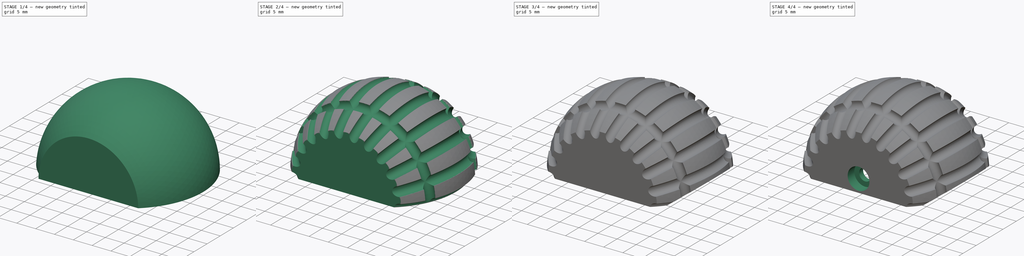
[diagram: build sequence overview — one tinted view per stage of 4, left to right]
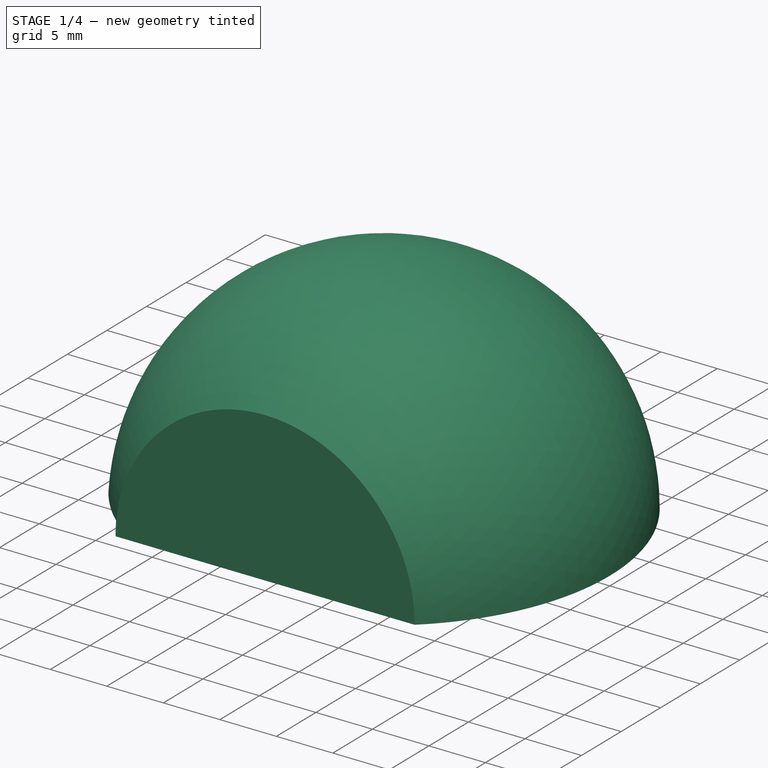
[diagram: stage 1 of 4 — iso view after this stage's code; geometry added in this stage tinted green]
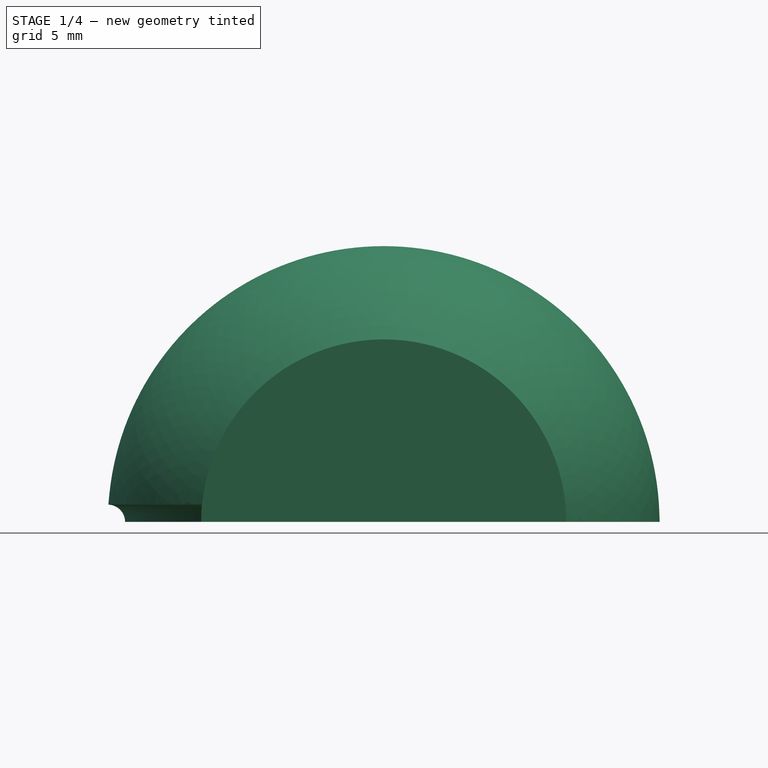
[diagram: stage 1 of 4 — front view after this stage's code; geometry added in this stage tinted green]
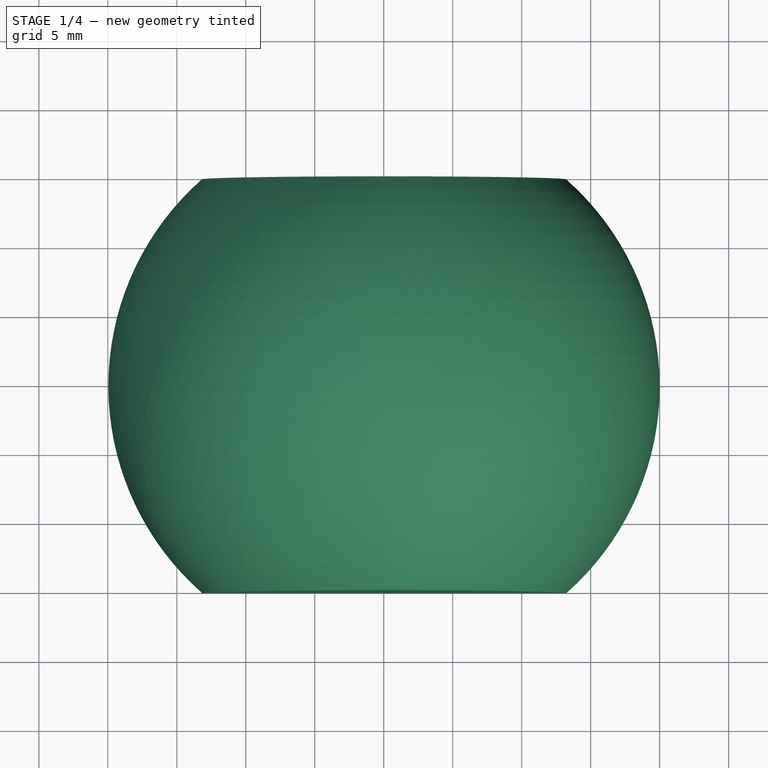
[diagram: stage 1 of 4 — top view after this stage's code; geometry added in this stage tinted green]
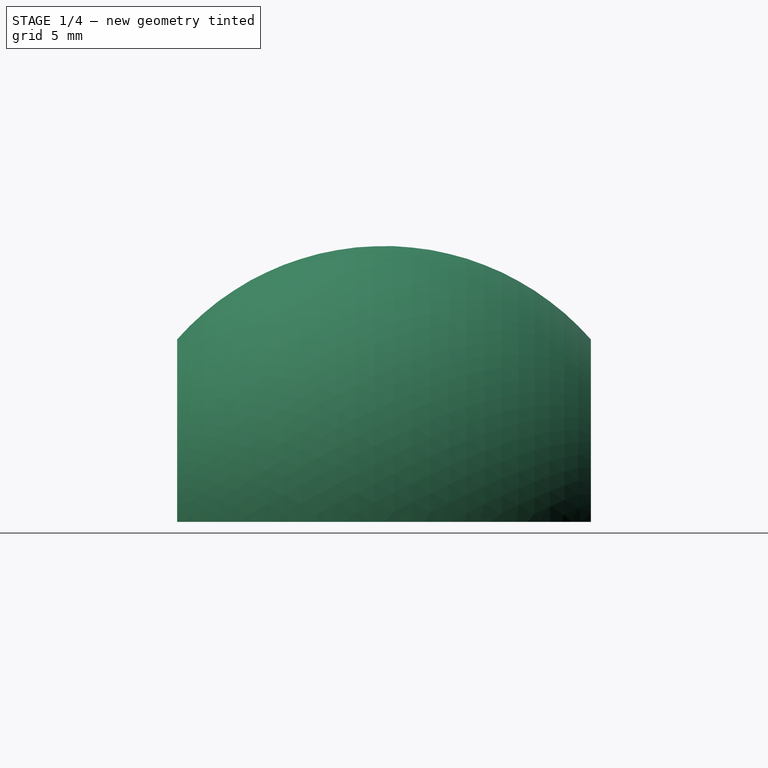
[diagram: stage 1 of 4 — right view after this stage's code; geometry added in this stage tinted green]
FCSTD DOCUMENT  (FreeCAD 0.18R4 (GitTag))
Label: Foot_Tip
License: CreativeCommons Attribution-NonCommercial
LicenseURL: http://creativecommons.org/licenses/by-nc/4.0/
objects: Sketcher::SketchObject×10, PartDesign::Pocket×6, PartDesign::Groove×2, PartDesign::Pad×1, PartDesign::SubtractivePipe×1, PartDesign::PolarPattern×1, PartDesign::Body×1
note: 32 computed .brp shape members not serialized (recipe doc carries the construction recipe); baked Part::Feature solids carry a one-line shape summary decoded from their .brp

FEATURE [Sketcher::SketchObject] Sketch
  MapMode = 5
  Placement = pos=(0,0,0) rot=(1,0,0;1.5708rad)
  Support = -> [XZ_Plane]
  sketch-geometry (2):
    g0: ArcOfCircle CenterX=0 CenterY=0 CenterZ=0 NormalX=0 NormalY=0 NormalZ=1 AngleXU=0 Radius=20 StartAngle=-1.8e-15 EndAngle=3.14159
    g1: LineSegment StartX=-20 StartY=-1.38798e-11 StartZ=0 EndX=20 EndY=-3.55e-14 EndZ=0
  constraints (6):
    c: Coincident(g0,g-1)
    c: PointOnObject(g0,g-1)
    c: PointOnObject(g0,g-1)
    c: Coincident(g1,g0)
    c: Coincident(g1,g0)
    c: Radius(g0) = 20
FEATURE [PartDesign::Pad] Pad  label="Baseblock"
  Length = 15
  Length2 = 15
  Placement = pos=(0,0,0) rot=(1,0,0;1.5708rad)
  Profile = -> Sketch
  Type = 4
FEATURE [Sketcher::SketchObject] Sketch001
  MapMode = 5
  Placement = pos=(0,0,-6.9577e-12) rot=(1,0,0;3.14159rad)
  Support = -> [Pad]
  sketch-geometry (4):
    g0: ArcOfCircle CenterX=0 CenterY=0 CenterZ=0 NormalX=0 NormalY=0 NormalZ=1 AngleXU=0 Radius=20 StartAngle=2.29353 EndAngle=3.98965
    g1: LineSegment StartX=-13.2288 StartY=15 StartZ=0 EndX=-23.2288 EndY=15 EndZ=0
    g2: LineSegment StartX=-23.2288 StartY=15 StartZ=0 EndX=-23.2288 EndY=-15 EndZ=0
    g3: LineSegment StartX=-23.2288 StartY=-15 StartZ=0 EndX=-13.2288 EndY=-15 EndZ=0
  constraints (12):
    c: Coincident(g0,g-1)
    c: Vertical(g0,g0)
    c: Coincident(g0,g1)
    c: Coincident(g1,g2)
    c: Vertical(g2)
    c: Coincident(g2,g3)
    c: Coincident(g3,g0)
    c: Horizontal(g3)
    c: Radius(g0) = 20
    c: DistanceX(g1,g1) = 10
    c: DistanceY(g2,g2) = 30
    c: Horizontal(g1)
FEATURE [PartDesign::Groove] Groove  label="Halfspherical Shape"
  Angle = 360
  Axis = (0,-1,7e-16)
  Base = (0,0,-6.9577e-12)
  BaseFeature = -> Pad
  Placement = pos=(0,0,0) rot=(1,0,0;1.5708rad)
  Profile = -> Sketch001
  ReferenceAxis = -> Sketch001 [V_Axis]
  Reversed = true
FEATURE [Sketcher::SketchObject] Sketch002
  MapMode = 5
  Placement = pos=(0,0,0) rot=(1,0,0;1.5708rad)
  Support = -> [XZ_Plane]
  sketch-geometry (2):
    g0: Circle [constr] CenterX=0 CenterY=0 CenterZ=0 NormalX=0 NormalY=0 NormalZ=1 AngleXU=0 Radius=20
    g1: Circle CenterX=-20 CenterY=0 CenterZ=0 NormalX=0 NormalY=0 NormalZ=1 AngleXU=0 Radius=1.25
  constraints (5):
    c: Coincident(g0,g-1)
    c: Radius(g0) = 20
    c: PointOnObject(g1,g0)
    c: Radius(g1) = 1.25
    c: PointOnObject(g1,g-1)
FEATURE [PartDesign::SubtractivePipe] SubtractivePipe  label="Horizontal Profile"
  AuxilleryCurvelinear = true
  AuxillerySpineTangent = false
  BaseFeature = -> Groove
  Binormal = (0,0,0)
  Mode = 0
  Placement = pos=(0,0,0) rot=(1,0,0;1.5708rad)
  Profile = -> Sketch002
  Spine = -> Groove [Edge2,Edge1]
  SpineTangent = false
  Transformation = 0
  Transition = 0
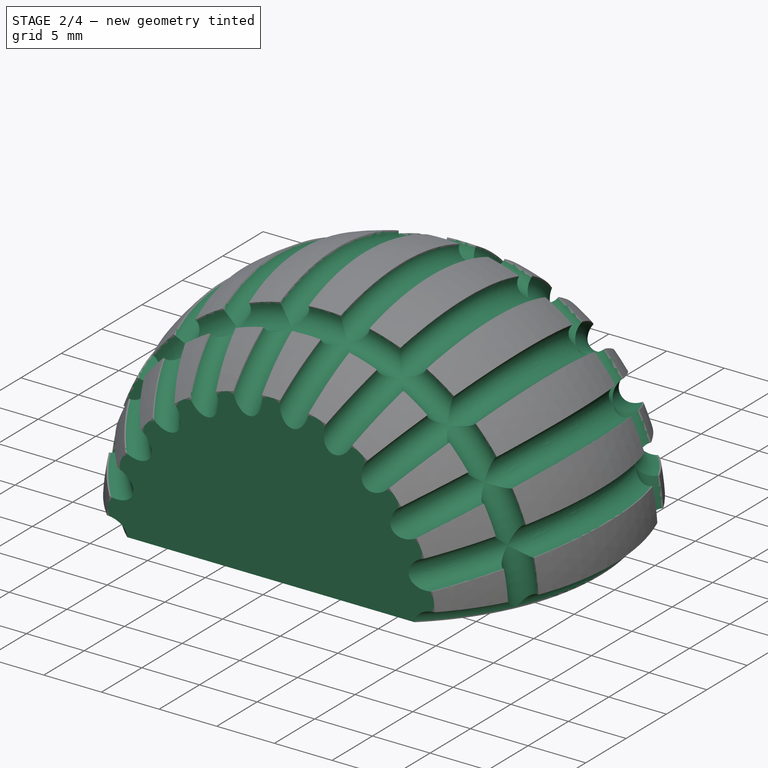
[diagram: stage 2 of 4 — iso view after this stage's code; geometry added in this stage tinted green]
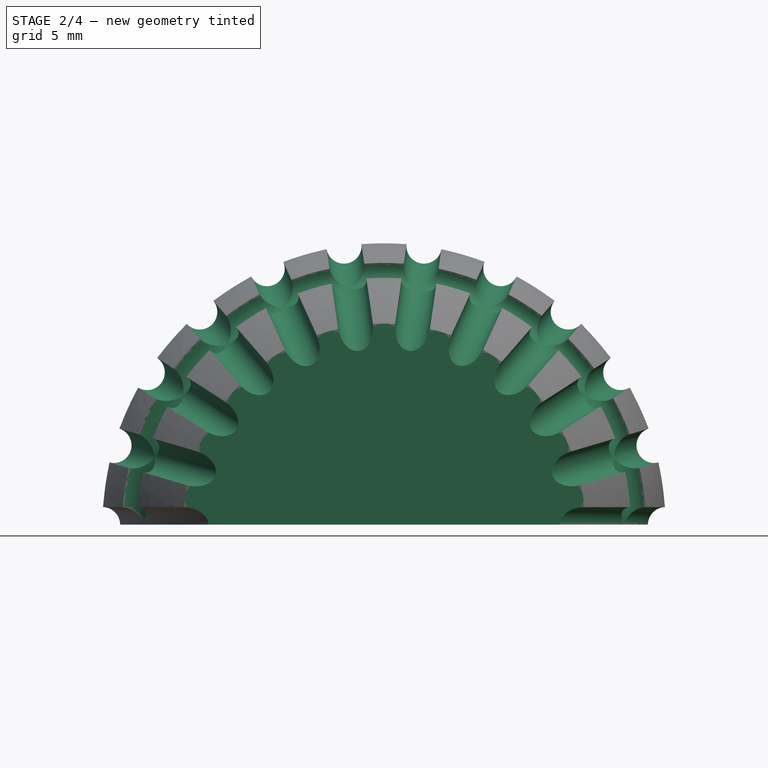
[diagram: stage 2 of 4 — front view after this stage's code; geometry added in this stage tinted green]
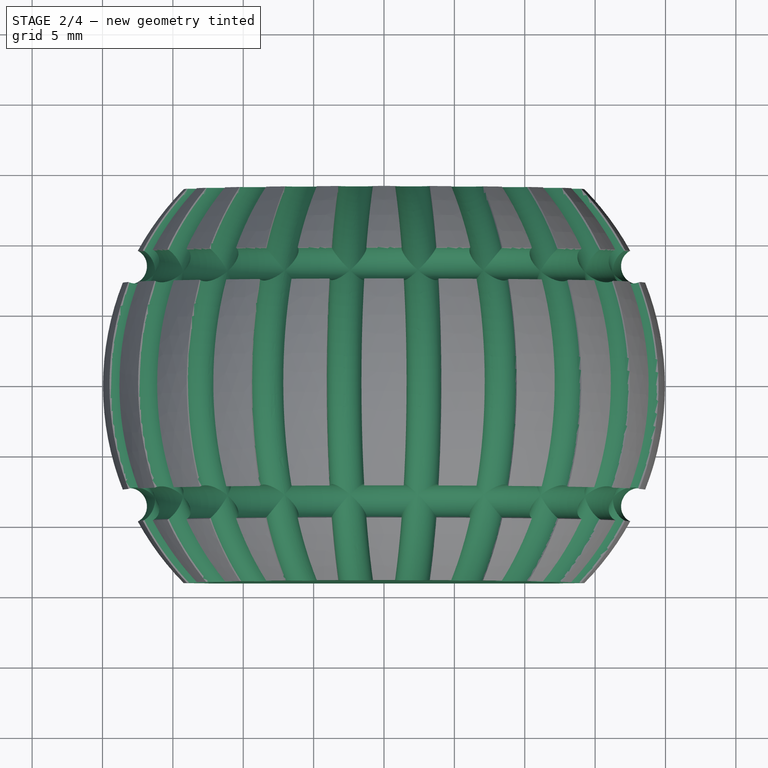
[diagram: stage 2 of 4 — top view after this stage's code; geometry added in this stage tinted green]
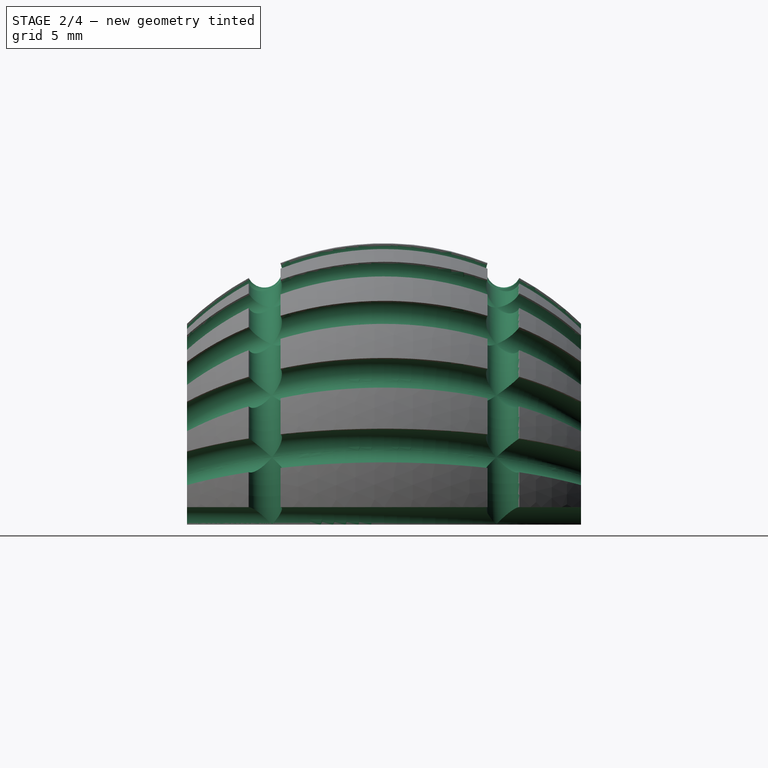
[diagram: stage 2 of 4 — right view after this stage's code; geometry added in this stage tinted green]
FEATURE [PartDesign::PolarPattern] PolarPattern  label="Horizontal Profile Polar Pattern"
  Angle = 180
  Axis = -> Sketch002 [N_Axis]
  BaseFeature = -> SubtractivePipe
  Occurrences = 12
  Originals = -> [SubtractivePipe]
  Placement = pos=(0,0,0) rot=(1,0,0;1.5708rad)
  Reversed = true
FEATURE [Sketcher::SketchObject] Sketch003
  MapMode = 5
  Support = -> [XY_Plane]
  sketch-geometry (3):
    g0: Circle [constr] CenterX=0 CenterY=0 CenterZ=0 NormalX=0 NormalY=0 NormalZ=1 AngleXU=0 Radius=20
    g1: Circle CenterX=18.1039 CenterY=8.5 CenterZ=0 NormalX=0 NormalY=0 NormalZ=1 AngleXU=0 Radius=1.25
    g2: Circle CenterX=18.1039 CenterY=-8.5 CenterZ=0 NormalX=0 NormalY=0 NormalZ=1 AngleXU=0 Radius=1.25
  constraints (7):
    c: Coincident(g0,g-1)
    c: Radius(g0) = 20
    c: PointOnObject(g1,g0)
    c: Radius(g1) = 1.25
    c: DistanceY(g-1,g1) = 8.5
    c: Equal(g2,g1)
    c: Symmetric(g2,g1,g-1)
FEATURE [PartDesign::Groove] Groove001  label="Vertical Profiles"
  Angle = 360
  Axis = (0,1,0)
  Base = (0,0,0)
  BaseFeature = -> PolarPattern
  Placement = pos=(0,0,0) rot=(1,0,0;1.5708rad)
  Profile = -> Sketch003
  ReferenceAxis = -> Sketch003 [V_Axis]
FEATURE [Sketcher::SketchObject] Sketch004
  MapMode = 5
  Support = -> [XY_Plane]
  sketch-geometry (8):
    g0: LineSegment StartX=-20 StartY=14 StartZ=0 EndX=20 EndY=14 EndZ=0
    g1: LineSegment StartX=20 StartY=14 StartZ=0 EndX=20 EndY=19 EndZ=0
    g2: LineSegment StartX=20 StartY=19 StartZ=0 EndX=-20 EndY=19 EndZ=0
    g3: LineSegment StartX=-20 StartY=19 StartZ=0 EndX=-20 EndY=14 EndZ=0
    g4: LineSegment StartX=-20 StartY=-19 StartZ=0 EndX=20 EndY=-19 EndZ=0
    g5: LineSegment StartX=20 StartY=-19 StartZ=0 EndX=20 EndY=-14 EndZ=0
    g6: LineSegment StartX=20 StartY=-14 StartZ=0 EndX=-20 EndY=-14 EndZ=0
    g7: LineSegment StartX=-20 StartY=-14 StartZ=0 EndX=-20 EndY=-19 EndZ=0
  constraints (22):
    c: Coincident(g0,g1)
    c: Coincident(g1,g2)
    c: Coincident(g2,g3)
    c: Coincident(g3,g0)
    c: Horizontal(g0)
    c: Vertical(g1)
    c: Vertical(g3)
    c: Coincident(g4,g5)
    c: Coincident(g5,g6)
    c: Coincident(g6,g7)
    c: Coincident(g7,g4)
    c: Horizontal(g4)
    c: Horizontal(g6)
    c: Vertical(g5)
    c: Vertical(g7)
    c: Equal(g1,g5)
    c: Equal(g6,g2)
    c: Symmetric(g1,g2,g-2)
    c: Symmetric(g1,g4,g-1)
    c: DistanceY(g1,g1) = 5
    c: DistanceY(g5,g0) = 28
    c: DistanceX(g2,g2) = 40
FEATURE [PartDesign::Pocket] Pocket  label="Cut Sides"
  BaseFeature = -> Groove001
  Length = 25
  Length2 = 100
  Placement = pos=(0,0,0) rot=(1,0,0;1.5708rad)
  Profile = -> Sketch004
  Reversed = true
  Type = 0
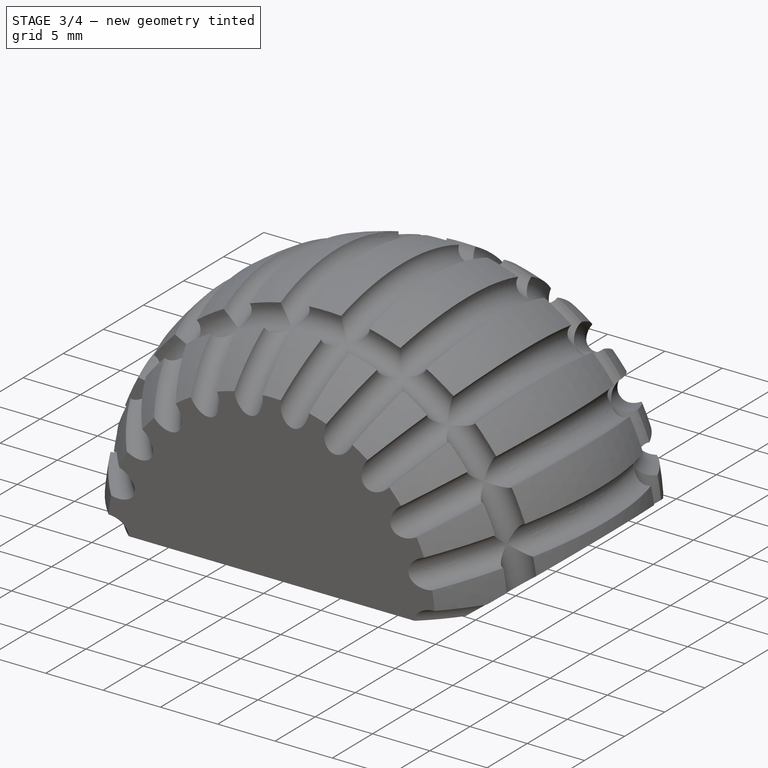
[diagram: stage 3 of 4 — iso view after this stage's code; geometry added in this stage tinted green]
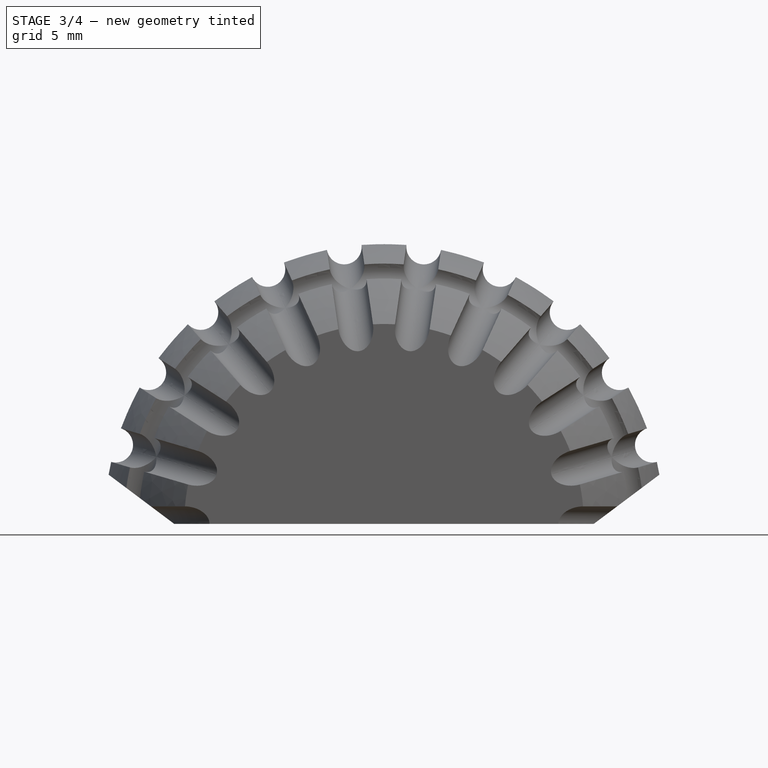
[diagram: stage 3 of 4 — front view after this stage's code; geometry added in this stage tinted green]
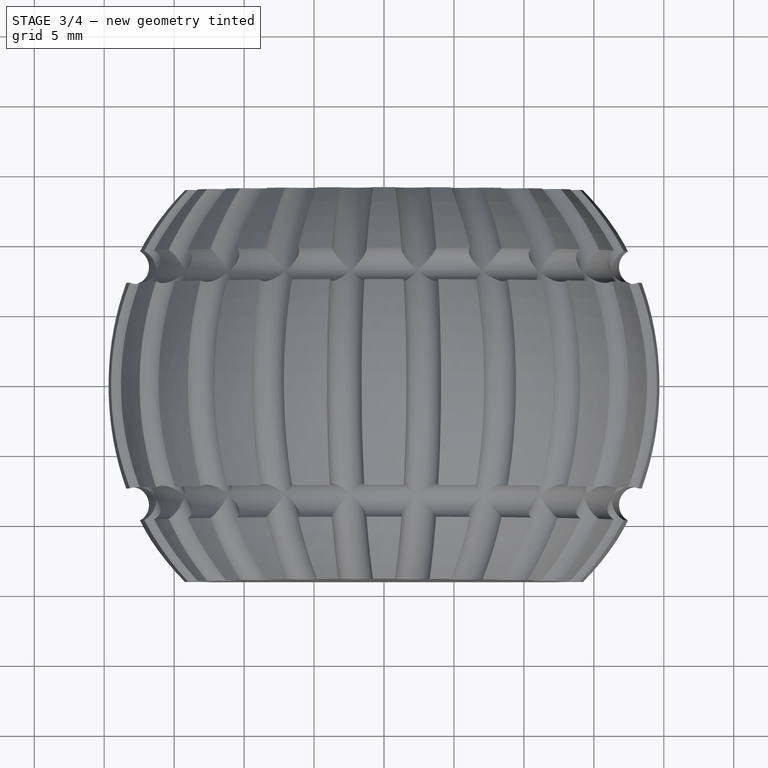
[diagram: stage 3 of 4 — top view after this stage's code; geometry added in this stage tinted green]
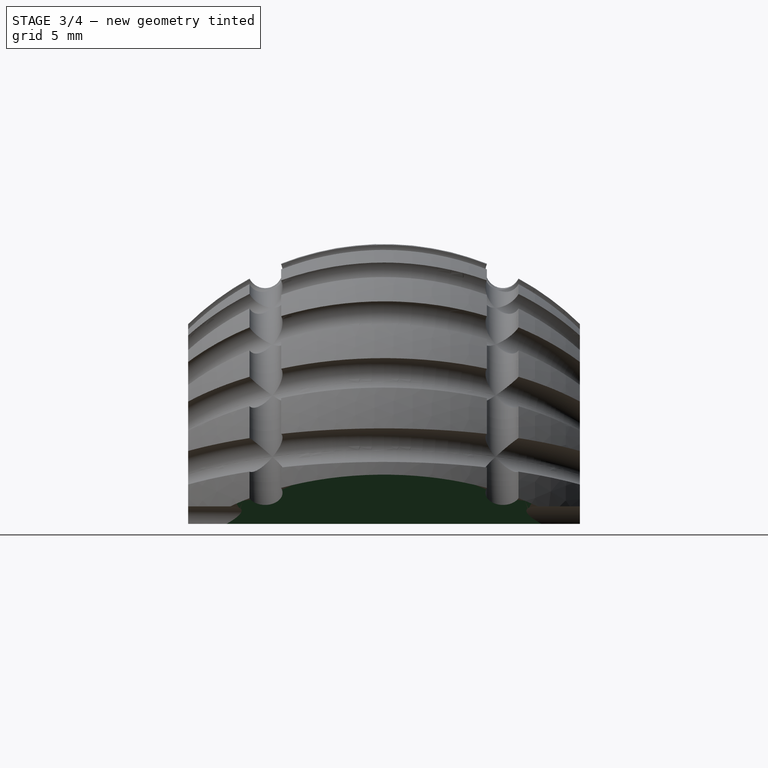
[diagram: stage 3 of 4 — right view after this stage's code; geometry added in this stage tinted green]
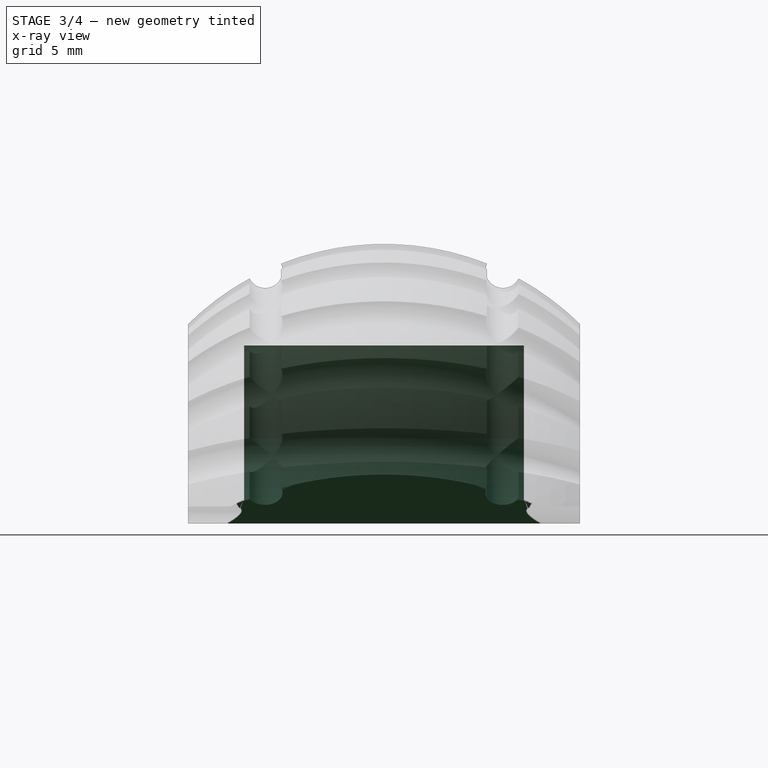
[diagram: stage 3 of 4 — x-ray composite at the right view; earlier geometry ghosted, this stage's added geometry solid]
FEATURE [Sketcher::SketchObject] Sketch005
  MapMode = 5
  Placement = pos=(0,0,0) rot=(1,0,0;1.5708rad)
  Support = -> [XZ_Plane]
  sketch-geometry (2):
    g0: ArcOfCircle CenterX=0 CenterY=0 CenterZ=0 NormalX=0 NormalY=0 NormalZ=1 AngleXU=0 Radius=12.75 StartAngle=0 EndAngle=3.14159
    g1: LineSegment StartX=-12.75 StartY=0 StartZ=0 EndX=12.75 EndY=0 EndZ=0
  constraints (6):
    c: Coincident(g0,g-1)
    c: Coincident(g1,g0)
    c: Coincident(g1,g0)
    c: Horizontal(g1)
    c: PointOnObject(g0,g1)
    c: Radius(g0) = 12.75
FEATURE [PartDesign::Pocket] Pocket001  label="Inner Halfspherical Cutout"
  BaseFeature = -> Pocket
  Length = 10
  Length2 = 10
  Placement = pos=(0,0,0) rot=(1,0,0;1.5708rad)
  Profile = -> Sketch005
  Type = 4
FEATURE [Sketcher::SketchObject] Sketch006
  MapMode = 5
  Placement = pos=(0,0,0) rot=(1,0,0;1.5708rad)
  Support = -> [XZ_Plane]
  sketch-geometry (6):
    g0: LineSegment StartX=-15 StartY=0 StartZ=0 EndX=-25 EndY=7.5 EndZ=0
    g1: LineSegment StartX=-25 StartY=7.5 StartZ=0 EndX=-25 EndY=-7.5 EndZ=0
    g2: LineSegment StartX=-25 StartY=-7.5 StartZ=0 EndX=25 EndY=-7.5 EndZ=0
    g3: LineSegment StartX=25 StartY=-7.5 StartZ=0 EndX=25 EndY=7.5 EndZ=0
    g4: LineSegment StartX=25 StartY=7.5 StartZ=0 EndX=15 EndY=0 EndZ=0
    g5: LineSegment StartX=15 StartY=0 StartZ=0 EndX=-15 EndY=0 EndZ=0
  constraints (15):
    c: PointOnObject(g0,g-1)
    c: Coincident(g0,g1)
    c: Vertical(g1)
    c: Coincident(g1,g2)
    c: Horizontal(g2)
    c: Coincident(g2,g3)
    c: Coincident(g3,g4)
    c: Coincident(g4,g5)
    c: Coincident(g5,g0)
    c: DistanceX(g5,g5) = 30
    c: DistanceX(g4,g2) = 10
    c: Symmetric(g0,g4,g-2)
    c: Symmetric(g0,g3,g-2)
    c: DistanceY(g-1,g3) = 7.5
    c: Symmetric(g2,g3,g-1)
FEATURE [PartDesign::Pocket] Pocket002  label="Slanted Edge"
  BaseFeature = -> Pocket001
  Length = 15
  Length2 = 15
  Placement = pos=(0,0,0) rot=(1,0,0;1.5708rad)
  Profile = -> Sketch006
  Type = 4
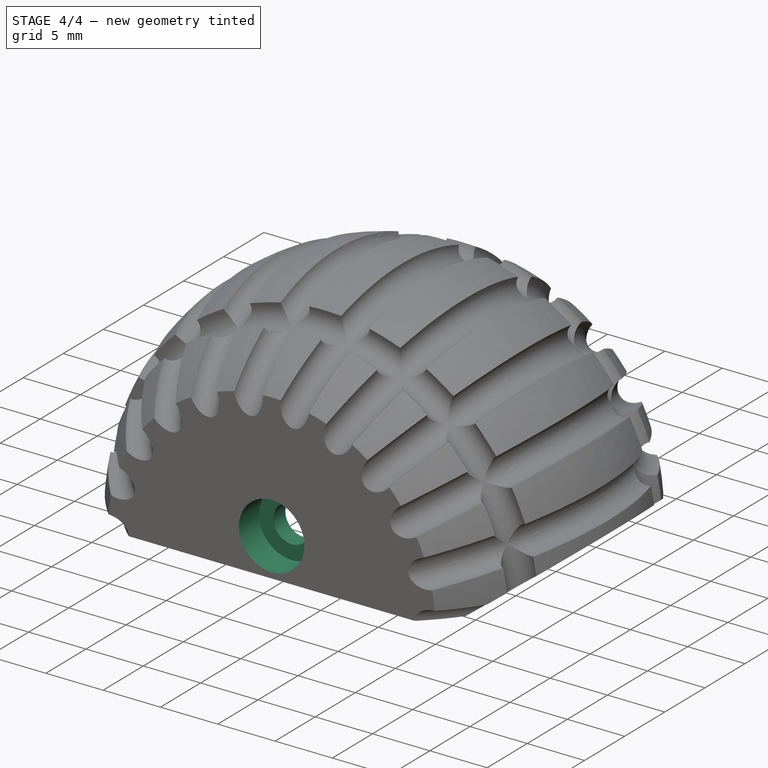
[diagram: stage 4 of 4 — iso view after this stage's code; geometry added in this stage tinted green]
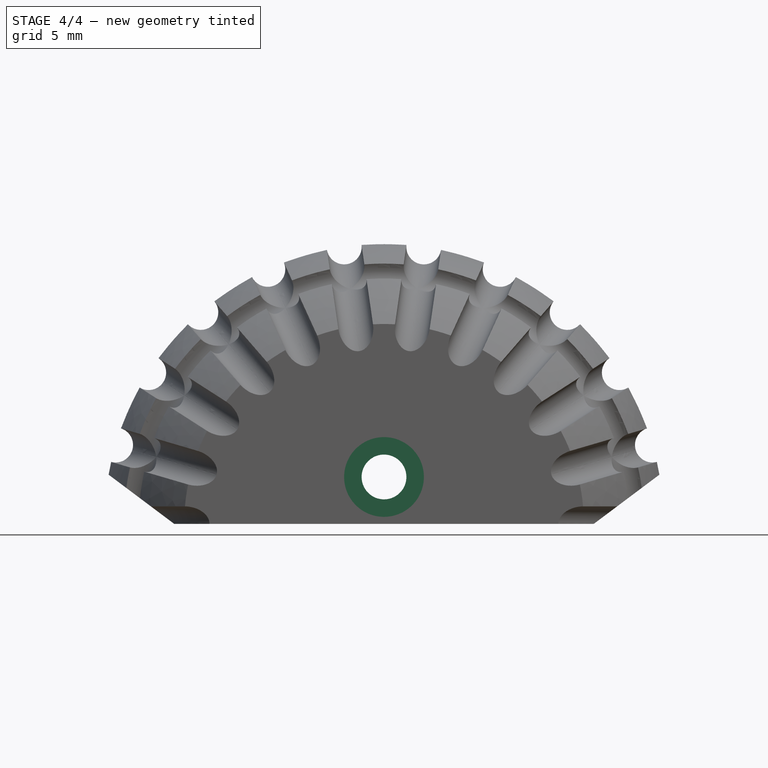
[diagram: stage 4 of 4 — front view after this stage's code; geometry added in this stage tinted green]
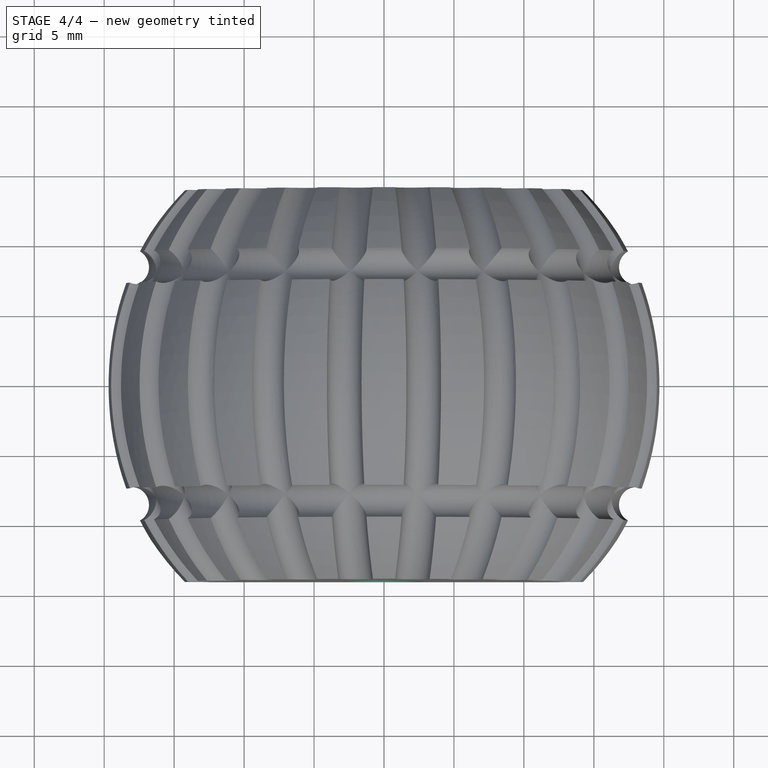
[diagram: stage 4 of 4 — top view after this stage's code; geometry added in this stage tinted green]
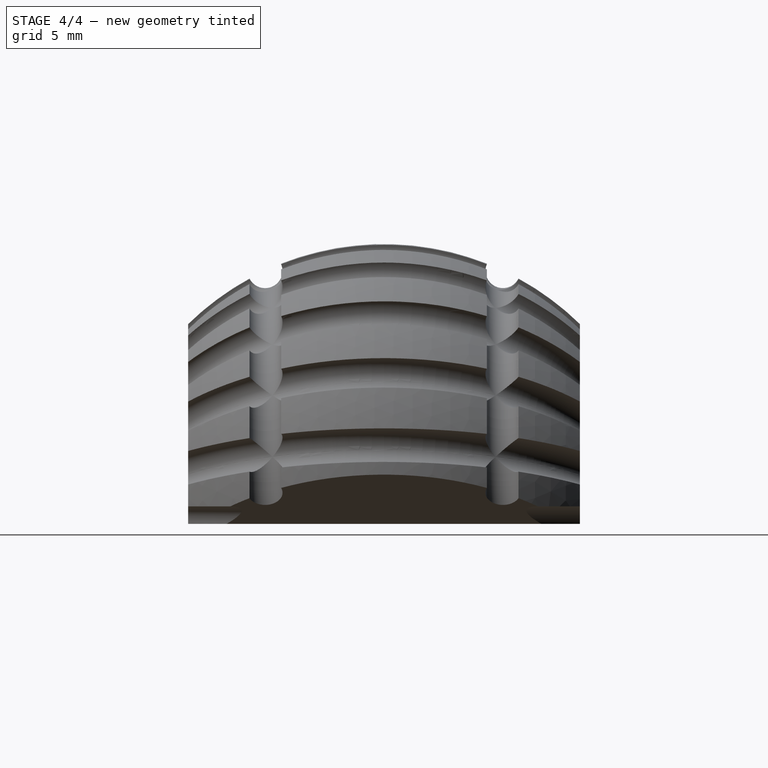
[diagram: stage 4 of 4 — right view after this stage's code; geometry added in this stage tinted green]
FEATURE [Sketcher::SketchObject] Sketch007
  MapMode = 5
  Placement = pos=(0,0,0) rot=(1,0,0;1.5708rad)
  Support = -> [XZ_Plane]
  sketch-geometry (8):
    g0: LineSegment [constr] StartX=-4e-16 StartY=6.69726 StartZ=0 EndX=-2.9 EndY=5.02295 EndZ=0
    g1: LineSegment [constr] StartX=-2.9 StartY=5.02295 StartZ=0 EndX=-2.9 EndY=1.67432 EndZ=0
    g2: LineSegment [constr] StartX=-2.9 StartY=1.67432 StartZ=0 EndX=0 EndY=0 EndZ=0
    g3: LineSegment [constr] StartX=0 StartY=0 StartZ=0 EndX=2.9 EndY=1.67432 EndZ=0
    g4: LineSegment [constr] StartX=2.9 StartY=1.67432 StartZ=0 EndX=2.9 EndY=5.02295 EndZ=0
    g5: LineSegment [constr] StartX=2.9 StartY=5.02295 StartZ=0 EndX=-4e-16 EndY=6.69726 EndZ=0
    g6: Circle [constr] CenterX=0 CenterY=3.34863 CenterZ=0 NormalX=0 NormalY=0 NormalZ=1 AngleXU=0 Radius=3.34863
    g7: Circle CenterX=0 CenterY=3.34863 CenterZ=0 NormalX=0 NormalY=0 NormalZ=1 AngleXU=0 Radius=1.6
  constraints (18):
    c: Coincident(g0,g1)
    c: Coincident(g1,g2)
    c: Coincident(g2,g3)
    c: Coincident(g3,g4)
    c: Coincident(g4,g5)
    c: Coincident(g5,g0)
    c: Equal(g0, g1-g5) x5
    c: PointOnObject(g0,g6)
    c: PointOnObject(g1,g6)
    c: PointOnObject(g2,g6)
    c: PointOnObject(g3,g6)
    c: PointOnObject(g4,g6)
    c: PointOnObject(g5,g6)
    c: PointOnObject(g6,g-2)
    c: DistanceX(g0,g4) = 5.8
    c: Coincident(g2,g-1)
    c: Coincident(g7,g6)
    c: Radius(g7) = 1.6
FEATURE [PartDesign::Pocket] Pocket003  label="Screwholes"
  BaseFeature = -> Pocket002
  Length = 15
  Length2 = 15
  Placement = pos=(0,0,0) rot=(1,0,0;1.5708rad)
  Profile = -> Sketch007
  Type = 4
FEATURE [Sketcher::SketchObject] Sketch008
  ExternalGeometry = -> [Pocket003]
  MapMode = 5
  Placement = pos=(0,14,-2.49e-14) rot=(-1,0,0;1.5708rad)
  Support = -> [Pocket003]
  sketch-geometry (1):
    g0: Circle CenterX=0 CenterY=-3.34863 CenterZ=0 NormalX=0 NormalY=0 NormalZ=1 AngleXU=0 Radius=2.85
  constraints (2):
    c: Coincident(g0,g-3)
    c: Radius(g0) = 2.85
FEATURE [PartDesign::Pocket] Pocket004  label="Screwhead Left"
  BaseFeature = -> Pocket003
  Length = 2.5
  Length2 = 100
  Placement = pos=(0,0,0) rot=(1,0,0;1.5708rad)
  Profile = -> Sketch008
  Type = 0
FEATURE [Sketcher::SketchObject] Sketch009
  ExternalGeometry = -> [Pocket004]
  MapMode = 5
  Placement = pos=(0,-14,3.11e-14) rot=(1,0,0;1.5708rad)
  Support = -> [Pocket004]
  sketch-geometry (1):
    g0: Circle CenterX=0 CenterY=3.34863 CenterZ=0 NormalX=0 NormalY=0 NormalZ=1 AngleXU=0 Radius=2.85
  constraints (2):
    c: Coincident(g-3,g0)
    c: Radius(g0) = 2.85
FEATURE [PartDesign::Pocket] Pocket005  label="Screwhead Right"
  BaseFeature = -> Pocket004
  Length = 2.5
  Length2 = 100
  Placement = pos=(0,0,0) rot=(1,0,0;1.5708rad)
  Profile = -> Sketch009
  Type = 0
FEATURE [PartDesign::Body] Body  label="Foot_Tip"
  Group = -> [Sketch,Pad,Sketch001,Groove,Sketch002,SubtractivePipe,PolarPattern,Sketch003,Groove001,Sketch004,Pocket,Sketch005,Pocket001,Sketch006,Pocket002,Sketch007,Pocket003,Sketch008,Pocket004,Sketch009,Pocket005]
  Origin = -> Origin
  Tip = -> Pocket005
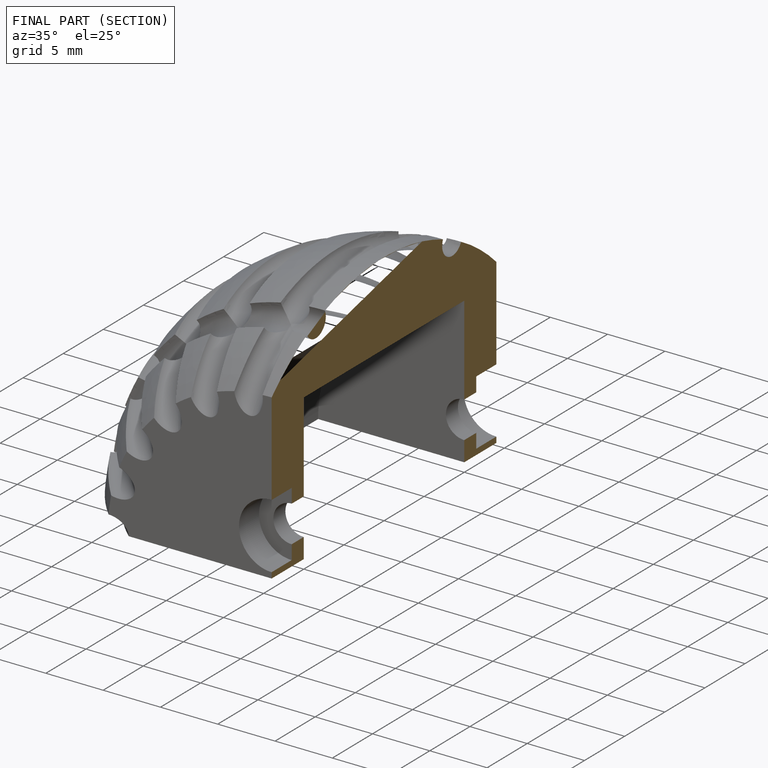
[diagram: finished part — half-section view (interior)]
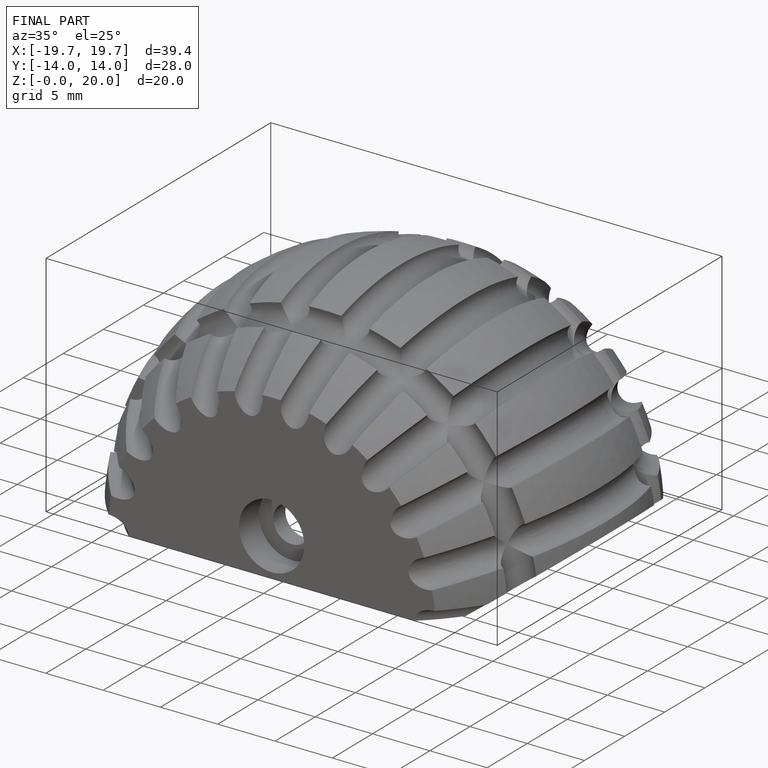
[diagram: finished part — iso view with bounding-box wireframe]
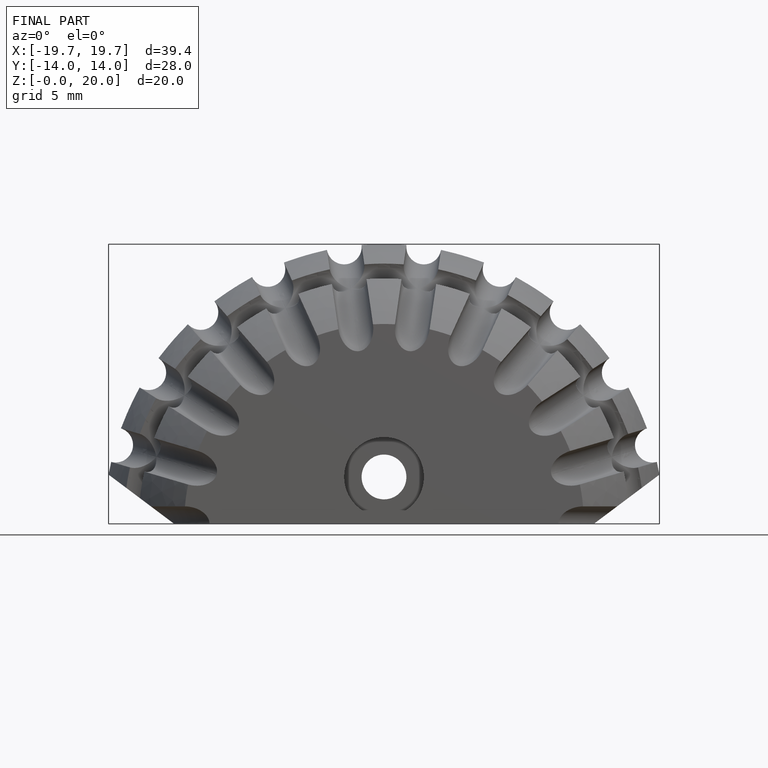
[diagram: finished part — front view with bounding-box wireframe]
